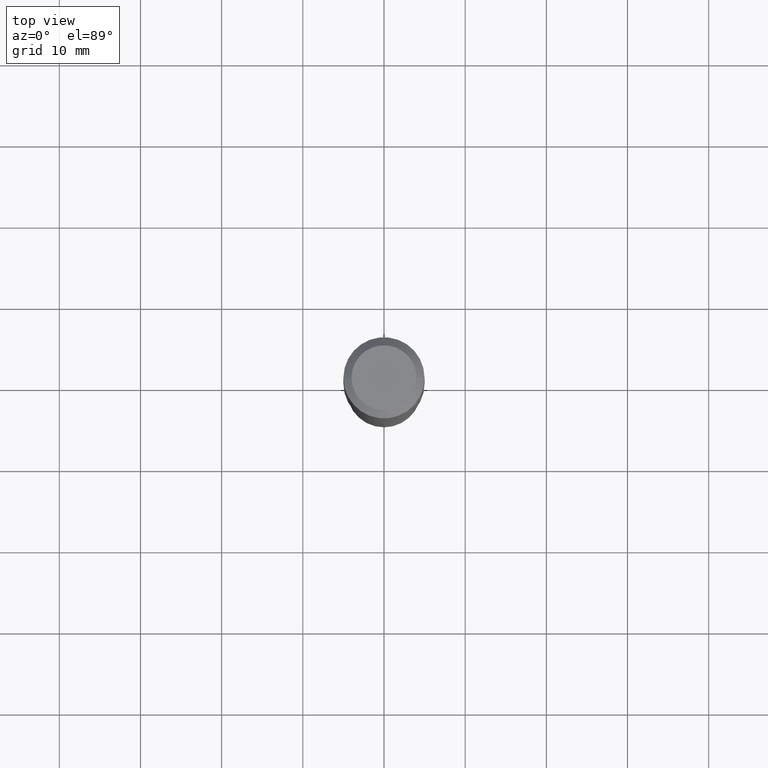
[diagram: clean part render]
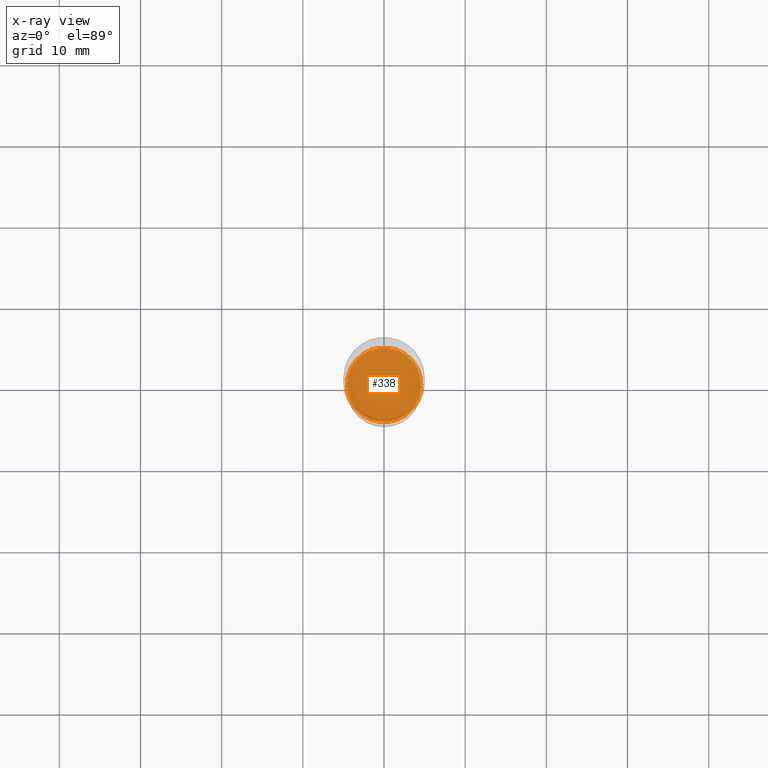
[diagram: x-ray — body ghosted, one internal face saturated and labeled with its STEP entity id]
A machine part, top view, then the same camera in x-ray: the body is ghosted and one INTERNAL B-rep face — a face not visible from any outside direction — is saturated and labeled: STEP entity #338.
In plain terms, the highlighted planar face has unit normal (-0, 0, 1).
Its self-contained STEP definition (entity closure, byte-faithful):
#4 = VERTEX_POINT ( 'NONE', #476 ) ;
#34 = CARTESIAN_POINT ( 'NONE',  ( 4.929331472627378640E-29, -7.037778934706127166E-15, -2.015699999999999381 ) ) ;
#68 = DIRECTION ( 'NONE',  ( 1.000000000000000000, -6.982962677686265922E-15, 4.876176775795935793E-29 ) ) ;
#107 = EDGE_CURVE ( 'NONE', #182, #4, #318, .T. ) ;
#115 = AXIS2_PLACEMENT_3D ( 'NONE', #296, #263, #68 ) ;
#152 = CARTESIAN_POINT ( 'NONE',  ( 0.1806000000000000105, -8.298901994296266309E-15, -2.015699999999999381 ) ) ;
#182 = VERTEX_POINT ( 'NONE', #152 ) ;
#199 = PLANE ( 'NONE',  #115 ) ;
#205 = CIRCLE ( 'NONE', #480, 0.1806000000000000105 ) ;
#214 = EDGE_LOOP ( 'NONE', ( #403, #392 ) ) ;
#230 = DIRECTION ( 'NONE',  ( 1.000000000000000000, -6.982962677686263555E-15, 0.000000000000000000 ) ) ;
#263 = DIRECTION ( 'NONE',  ( -2.438088387897960049E-29, 3.491481338843145188E-15, 1.000000000000000000 ) ) ;
#273 = FACE_OUTER_BOUND ( 'NONE', #214, .T. ) ;
#278 = AXIS2_PLACEMENT_3D ( 'NONE', #34, #487, #346 ) ;
#296 = CARTESIAN_POINT ( 'NONE',  ( 7.058472365498860368E-29, -3.988727992940315729E-15, -2.015699999999999381 ) ) ;
#304 = DIRECTION ( 'NONE',  ( -2.445468806185136597E-29, 3.491481338843145583E-15, 1.000000000000000000 ) ) ;
#316 = EDGE_CURVE ( 'NONE', #4, #182, #205, .T. ) ;
#318 = CIRCLE ( 'NONE', #278, 0.1806000000000000105 ) ;
#338 = ADVANCED_FACE ( 'NONE', ( #273 ), #199, .F. ) ;
#340 = CARTESIAN_POINT ( 'NONE',  ( 4.929331472627378640E-29, -7.037778934706127166E-15, -2.015699999999999381 ) ) ;
#346 = DIRECTION ( 'NONE',  ( 1.000000000000000000, -6.982962677686263555E-15, 0.000000000000000000 ) ) ;
#392 = ORIENTED_EDGE ( 'NONE', *, *, #316, .F. ) ;
#403 = ORIENTED_EDGE ( 'NONE', *, *, #107, .F. ) ;
#476 = CARTESIAN_POINT ( 'NONE',  ( -0.1806000000000000105, -5.751889526749275152E-15, -2.015699999999999381 ) ) ;
#480 = AXIS2_PLACEMENT_3D ( 'NONE', #340, #304, #230 ) ;
#487 = DIRECTION ( 'NONE',  ( -2.445468806185136597E-29, 3.491481338843145583E-15, 1.000000000000000000 ) ) ;